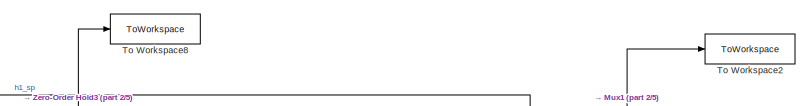
[diagram: root canvas - part 1/5, top center region]
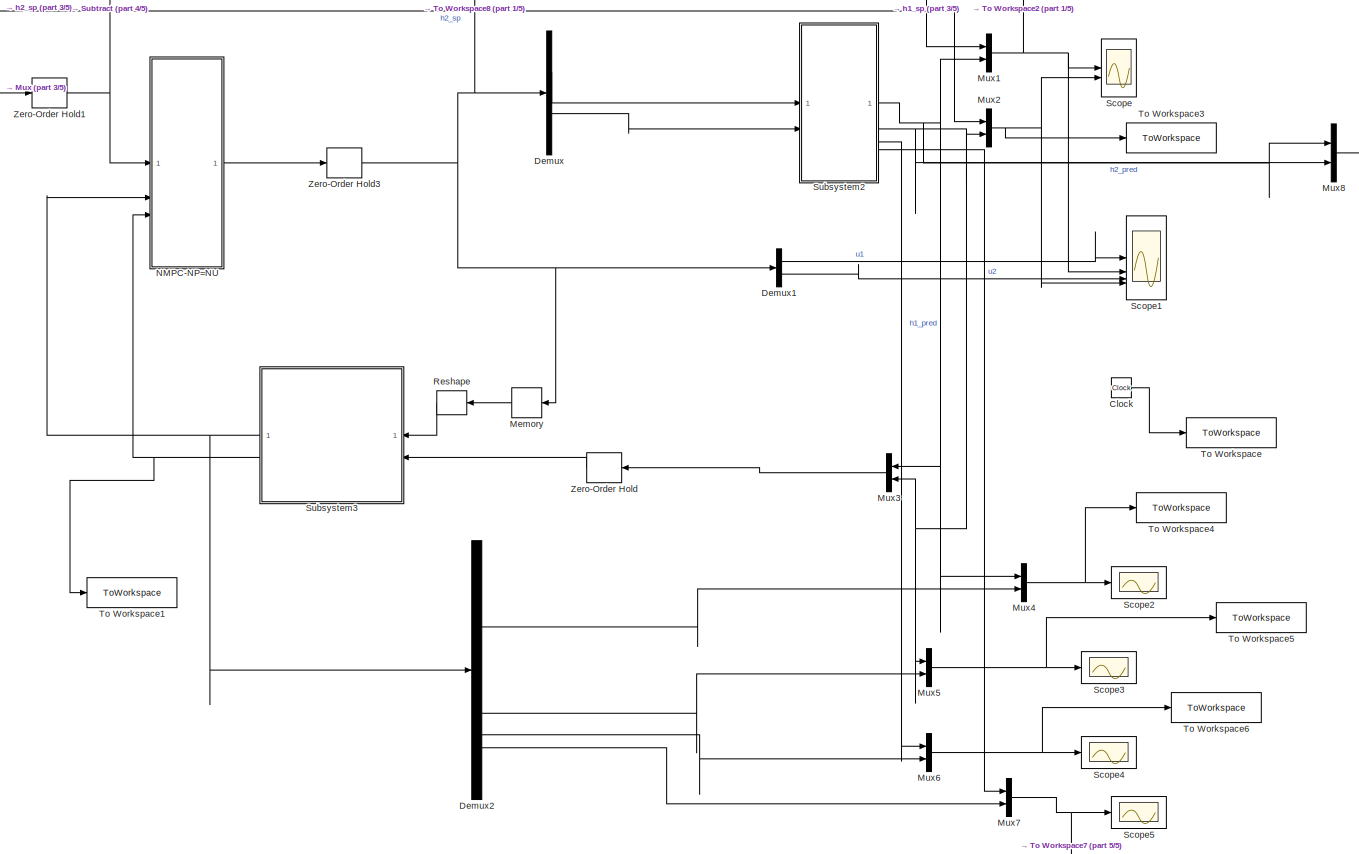
[diagram: root canvas - part 2/5, center side, full height]
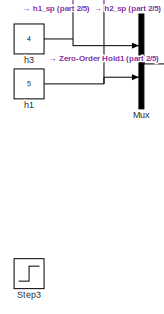
[diagram: root canvas - part 3/5, top left region]
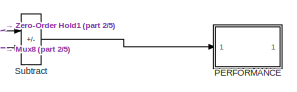
[diagram: root canvas - part 4/5, top right region]
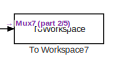
[diagram: root canvas - part 5/5, bottom right region]
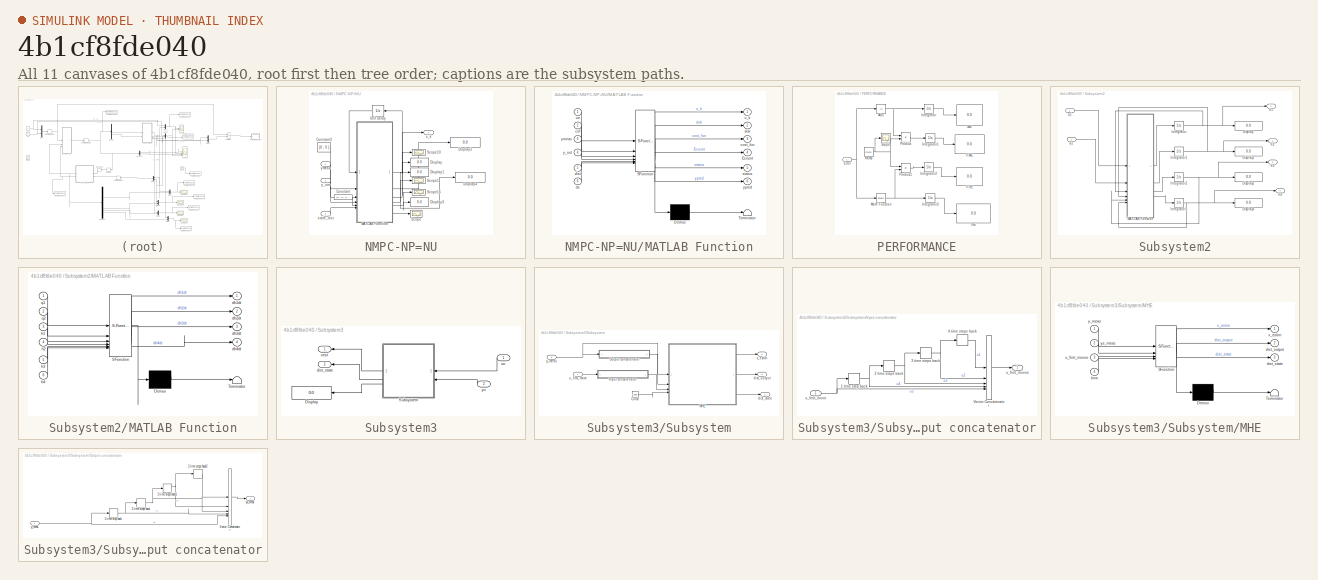
[diagram: thumbnail index - all 11 canvases of the model, root first then tree order]
MODEL slx_4b1cf8fde040
KIND model
CONFIG AbsTol = auto
CONFIG EnableMultiTasking = off
CONFIG FixedStep = auto
CONFIG MaxStep = auto
CONFIG MinStep = auto
CONFIG RelTol = 1e-3
CONFIG SampleTimeConstraint = Unconstrained
CONFIG SolverName = VariableStepAuto
CONFIG StartTime = 0.0
CONFIG StopTime = 1200
BLOCK [Clock] Clock
BLOCK [Demux] Demux
  Outputs = 2
BLOCK [Demux] Demux1
  Outputs = 2
BLOCK [Demux] Demux2
BLOCK [Memory] Memory
  InitialCondition = [55;75]
BLOCK [Mux] Mux
  DisplayOption = bar
  Inputs = 2
BLOCK [Mux] Mux1
  DisplayOption = bar
  Inputs = 2
BLOCK [Mux] Mux2
  DisplayOption = bar
  Inputs = 2
BLOCK [Mux] Mux3
  DisplayOption = bar
  Inputs = 2
BLOCK [Mux] Mux4
  DisplayOption = bar
  Inputs = 2
BLOCK [Mux] Mux5
  DisplayOption = bar
  Inputs = 2
BLOCK [Mux] Mux6
  DisplayOption = bar
  Inputs = 2
BLOCK [Mux] Mux7
  DisplayOption = bar
  Inputs = 2
BLOCK [Mux] Mux8
  DisplayOption = bar
  Inputs = 2
BLOCK [SubSystem] NMPC-NP=NU
BLOCK [Constant] NMPC-NP=NU/Constant
  Value = [0 ; 0 ; 0 ; 0]
BLOCK [Constant] NMPC-NP=NU/Constant2
  Value = [0 ; 0 ]
BLOCK [Display] NMPC-NP=NU/Display
  Decimation = 1
BLOCK [Display] NMPC-NP=NU/Display1
  Decimation = 1
BLOCK [Display] NMPC-NP=NU/Display2
  Decimation = 1
BLOCK [Display] NMPC-NP=NU/Display3
  Decimation = 1
BLOCK [Display] NMPC-NP=NU/Display4
  Decimation = 1
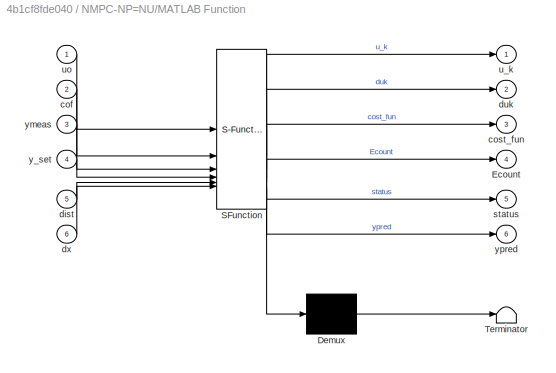
BLOCK [SubSystem] NMPC-NP=NU/MATLAB Function
  ErrorFcn = Stateflow.Translate.translate
  PermitHierarchicalResolution = ExplicitOnly
  SFBlockType = MATLAB Function
  TreatAsAtomicUnit = on
BLOCK [Demux] NMPC-NP=NU/MATLAB Function/ Demux 
  Outputs = 1
BLOCK [S-Function] NMPC-NP=NU/MATLAB Function/ SFunction 
  EnableBusSupport = on
  FunctionName = sf_sfun
  PortCounts = [6 7]
  SFcnIsStateOwnerBlock = off
  SFunctionDeploymentMode = off
  Tag = Stateflow S-Function 2
BLOCK [Terminator] NMPC-NP=NU/MATLAB Function/ Terminator 
BLOCK [Outport] NMPC-NP=NU/MATLAB Function/Ecount
  Port = 4
  VectorParamsAs1DForOutWhenUnconnected = off
BLOCK [Inport] NMPC-NP=NU/MATLAB Function/cof
  Port = 2
BLOCK [Outport] NMPC-NP=NU/MATLAB Function/cost_fun
  Port = 3
  VectorParamsAs1DForOutWhenUnconnected = off
BLOCK [Inport] NMPC-NP=NU/MATLAB Function/dist
  Port = 5
BLOCK [Outport] NMPC-NP=NU/MATLAB Function/duk
  Port = 2
BLOCK [Inport] NMPC-NP=NU/MATLAB Function/dx
  Port = 6
BLOCK [Outport] NMPC-NP=NU/MATLAB Function/status
  Port = 5
  VectorParamsAs1DForOutWhenUnconnected = off
BLOCK [Outport] NMPC-NP=NU/MATLAB Function/u_k
  VectorParamsAs1DForOutWhenUnconnected = off
BLOCK [Inport] NMPC-NP=NU/MATLAB Function/uo
BLOCK [Inport] NMPC-NP=NU/MATLAB Function/y_set
  Port = 4
BLOCK [Inport] NMPC-NP=NU/MATLAB Function/ymeas
  Port = 3
BLOCK [Outport] NMPC-NP=NU/MATLAB Function/ypred
  Port = 6
  VectorParamsAs1DForOutWhenUnconnected = off
BLOCK [Scope] NMPC-NP=NU/Scope
  Floating = off
  NumInputPorts = 1
  ScopeSpecificationString = Simulink.scopes.TimeScopeBlockCfg('CurrentConfiguration', extmgr.ConfigurationSet(extmgr.Configuration('Core','General UI',true),extmgr.Configuration('Core','Source UI',true),extmgr.Configuration('Sources','WiredSimulink',true,'DataLoggingVariableName','ScopeData8'),extmgr.Configuration('Visuals','Time Domain',true),extmgr.Configuration('Tools','Plot Navigation',true),extmgr.Configuration('Tools',...<+40ch>
BLOCK [Scope] NMPC-NP=NU/Scope1
  Floating = off
  NumInputPorts = 1
  ScopeSpecificationString = Simulink.scopes.TimeScopeBlockCfg('CurrentConfiguration', extmgr.ConfigurationSet(extmgr.Configuration('Core','General UI',true,'FigureColor',[0.156862745098039 0.156862745098039 0.156862745098039]),extmgr.Configuration('Core','Source UI',true),extmgr.Configuration('Sources','WiredSimulink',true,'DataLogging',true,'DataLoggingVariableName','ScopeData6','DataLoggingSaveFormat','StructureWithTime','...<+2809ch>
BLOCK [Scope] NMPC-NP=NU/Scope10
  Floating = off
  NumInputPorts = 1
  ScopeSpecificationString = Simulink.scopes.TimeScopeBlockCfg('CurrentConfiguration', extmgr.ConfigurationSet(extmgr.Configuration('Core','General UI',true,'FigureColor',[0.156862745098039 0.156862745098039 0.156862745098039]),extmgr.Configuration('Core','Source UI',true),extmgr.Configuration('Sources','WiredSimulink',true,'DataLogging',true,'DataLoggingVariableName','ScopeData1','DataLoggingSaveFormat','StructureWithTime','...<+2830ch>
BLOCK [Scope] NMPC-NP=NU/Scope16
  Floating = off
  NumInputPorts = 1
  ScopeSpecificationString = Simulink.scopes.TimeScopeBlockCfg('CurrentConfiguration', extmgr.ConfigurationSet(extmgr.Configuration('Core','General UI',true,'FigureColor',[0.156862745098039 0.156862745098039 0.156862745098039]),extmgr.Configuration('Core','Source UI',true),extmgr.Configuration('Sources','WiredSimulink',true,'DataLogging',true,'DataLoggingVariableName','ScopeData2','DataLoggingSaveFormat','StructureWithTime','...<+2785ch>
BLOCK [UnitDelay] NMPC-NP=NU/Unit Delay
  HasFrameUpgradeWarning = on
  InitialCondition = [55;75]
  SampleTime = Ts
BLOCK [Inport] NMPC-NP=NU/state_dist
  Port = 3
BLOCK [Outport] NMPC-NP=NU/u_k
  VectorParamsAs1DForOutWhenUnconnected = off
BLOCK [Inport] NMPC-NP=NU/y_set
BLOCK [Inport] NMPC-NP=NU/ymeas
  Port = 2
BLOCK [SubSystem] PERFORMANCE
BLOCK [Abs] PERFORMANCE/Abs
  SaturateOnIntegerOverflow = off
BLOCK [Inport] PERFORMANCE/Error
BLOCK [Display] PERFORMANCE/IAE
  Decimation = 1
BLOCK [Display] PERFORMANCE/ISE
  Decimation = 1
BLOCK [Display] PERFORMANCE/ITAE
  Decimation = 1
BLOCK [Display] PERFORMANCE/ITSE
  Decimation = 1
BLOCK [Integrator] PERFORMANCE/Integrator
BLOCK [Integrator] PERFORMANCE/Integrator1
BLOCK [Integrator] PERFORMANCE/Integrator2
BLOCK [Integrator] PERFORMANCE/Integrator3
BLOCK [Math] PERFORMANCE/Math Function
  Operator = square
  SignedPower = on
BLOCK [Product] PERFORMANCE/Product
  RndMeth = Zero
BLOCK [Product] PERFORMANCE/Product1
  RndMeth = Zero
BLOCK [Reference] PERFORMANCE/Ramp  REF=simulink/Sources/Ramp
  SourceBlock = simulink/Sources/Ramp
  SourceType = Ramp
BLOCK [Scope] PERFORMANCE/Scope
  Floating = off
  NumInputPorts = 1
  ScopeSpecificationString = Simulink.scopes.TimeScopeBlockCfg('CurrentConfiguration', extmgr.ConfigurationSet(extmgr.Configuration('Core','General UI',true),extmgr.Configuration('Core','Source UI',true),extmgr.Configuration('Sources','WiredSimulink',true,'DataLoggingLimitDataPoints',true,'DataLoggingSaveFormat','Array','DataLoggingDecimation','1','DataLoggingDecimateData',true),extmgr.Configuration('Visuals','Time Domain',tr...<+878ch>
BLOCK [Reshape] Reshape
  OutputDimensionality = Row vector (2-D)
BLOCK [Scope] Scope
  Floating = off
  NumInputPorts = 2
  ScopeSpecificationString = Simulink.scopes.TimeScopeBlockCfg('CurrentConfiguration', extmgr.ConfigurationSet(extmgr.Configuration('Core','General UI',true),extmgr.Configuration('Core','Source UI',true),extmgr.Configuration('Sources','WiredSimulink',true,'DataLoggingVariableName','ScopeData1'),extmgr.Configuration('Visuals','Time Domain',true),extmgr.Configuration('Tools','Plot Navigation',true),extmgr.Configuration('Tools',...<+40ch>
BLOCK [Scope] Scope1
  Floating = off
  NumInputPorts = 4
  ScopeSpecificationString = Simulink.scopes.TimeScopeBlockCfg('CurrentConfiguration', extmgr.ConfigurationSet(extmgr.Configuration('Core','General UI',true),extmgr.Configuration('Core','Source UI',true),extmgr.Configuration('Sources','WiredSimulink',true,'DataLoggingVariableName','ScopeData2'),extmgr.Configuration('Visuals','Time Domain',true,'SerializedDisplays',{struct('MinYLimReal','54.99887','MaxYLimReal','55.01021','YLa...<+3434ch>
BLOCK [Scope] Scope2
  Floating = off
  NumInputPorts = 1
  ScopeSpecificationString = Simulink.scopes.TimeScopeBlockCfg('CurrentConfiguration', extmgr.ConfigurationSet(extmgr.Configuration('Core','General UI',true),extmgr.Configuration('Core','Source UI',true),extmgr.Configuration('Sources','WiredSimulink',true,'DataLoggingVariableName','ScopeData1'),extmgr.Configuration('Visuals','Time Domain',true),extmgr.Configuration('Tools','Plot Navigation',true),extmgr.Configuration('Tools',...<+40ch>
BLOCK [Scope] Scope3
  Floating = off
  NumInputPorts = 1
  ScopeSpecificationString = Simulink.scopes.TimeScopeBlockCfg('CurrentConfiguration', extmgr.ConfigurationSet(extmgr.Configuration('Core','General UI',true),extmgr.Configuration('Core','Source UI',true),extmgr.Configuration('Sources','WiredSimulink',true,'DataLoggingVariableName','ScopeData2'),extmgr.Configuration('Visuals','Time Domain',true),extmgr.Configuration('Tools','Plot Navigation',true),extmgr.Configuration('Tools',...<+40ch>
BLOCK [Scope] Scope4
  Floating = off
  NumInputPorts = 1
  ScopeSpecificationString = Simulink.scopes.TimeScopeBlockCfg('CurrentConfiguration', extmgr.ConfigurationSet(extmgr.Configuration('Core','General UI',true),extmgr.Configuration('Core','Source UI',true),extmgr.Configuration('Sources','WiredSimulink',true,'DataLoggingVariableName','ScopeData3'),extmgr.Configuration('Visuals','Time Domain',true),extmgr.Configuration('Tools','Plot Navigation',true),extmgr.Configuration('Tools',...<+40ch>
BLOCK [Scope] Scope5
  Floating = off
  NumInputPorts = 1
  ScopeSpecificationString = Simulink.scopes.TimeScopeBlockCfg('CurrentConfiguration', extmgr.ConfigurationSet(extmgr.Configuration('Core','General UI',true),extmgr.Configuration('Core','Source UI',true),extmgr.Configuration('Sources','WiredSimulink',true,'DataLoggingVariableName','ScopeData4'),extmgr.Configuration('Visuals','Time Domain',true),extmgr.Configuration('Tools','Plot Navigation',true),extmgr.Configuration('Tools',...<+40ch>
BLOCK [Step] Step3
  After = 6.5
  Before = 5
  SampleTime = 0
  Time = 500
BLOCK [SubSystem] Subsystem2
BLOCK [Display] Subsystem2/Display
  Decimation = 1
BLOCK [Display] Subsystem2/Display1
  Decimation = 1
BLOCK [Display] Subsystem2/Display2
  Decimation = 1
BLOCK [Display] Subsystem2/Display3
  Decimation = 1
BLOCK [Integrator] Subsystem2/Integrator
BLOCK [Integrator] Subsystem2/Integrator1
BLOCK [Integrator] Subsystem2/Integrator2
BLOCK [Integrator] Subsystem2/Integrator3
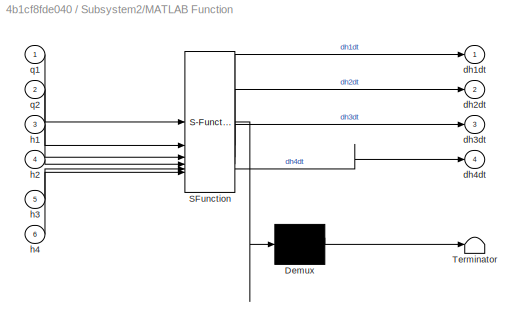
BLOCK [SubSystem] Subsystem2/MATLAB Function
  ErrorFcn = Stateflow.Translate.translate
  PermitHierarchicalResolution = ExplicitOnly
  SFBlockType = MATLAB Function
  TreatAsAtomicUnit = on
BLOCK [Demux] Subsystem2/MATLAB Function/ Demux 
  Outputs = 1
BLOCK [S-Function] Subsystem2/MATLAB Function/ SFunction 
  EnableBusSupport = on
  FunctionName = sf_sfun
  PortCounts = [6 5]
  SFcnIsStateOwnerBlock = off
  SFunctionDeploymentMode = off
  Tag = Stateflow S-Function 3
BLOCK [Terminator] Subsystem2/MATLAB Function/ Terminator 
BLOCK [Outport] Subsystem2/MATLAB Function/dh1dt
BLOCK [Outport] Subsystem2/MATLAB Function/dh2dt
  Port = 2
BLOCK [Outport] Subsystem2/MATLAB Function/dh3dt
  Port = 3
BLOCK [Outport] Subsystem2/MATLAB Function/dh4dt
  Port = 4
BLOCK [Inport] Subsystem2/MATLAB Function/h1
  Port = 3
BLOCK [Inport] Subsystem2/MATLAB Function/h2
  Port = 4
BLOCK [Inport] Subsystem2/MATLAB Function/h3
  Port = 5
BLOCK [Inport] Subsystem2/MATLAB Function/h4
  Port = 6
BLOCK [Inport] Subsystem2/MATLAB Function/q1
BLOCK [Inport] Subsystem2/MATLAB Function/q2
  Port = 2
BLOCK [Outport] Subsystem2/h1
BLOCK [Outport] Subsystem2/h2
  Port = 2
BLOCK [Outport] Subsystem2/h3
  Port = 3
BLOCK [Outport] Subsystem2/h4
  Port = 4
BLOCK [Inport] Subsystem2/q1
BLOCK [Inport] Subsystem2/q2
  Port = 2
BLOCK [SubSystem] Subsystem3
BLOCK [Display] Subsystem3/Display
  Decimation = 1
BLOCK [SubSystem] Subsystem3/Subsystem
BLOCK [Clock] Subsystem3/Subsystem/Clock
  Decimation = 20
BLOCK [SubSystem] Subsystem3/Subsystem/Input concatenator
BLOCK [TransportDelay] Subsystem3/Subsystem/Input concatenator/1 time step back
  DelayTime = 3
  InitialOutput = [55,75]
BLOCK [TransportDelay] Subsystem3/Subsystem/Input concatenator/2 time steps back
  DelayTime = 3
  InitialOutput = [55,75]
BLOCK [TransportDelay] Subsystem3/Subsystem/Input concatenator/3 time steps back
  DelayTime = 3
  InitialOutput = [55,75]
BLOCK [TransportDelay] Subsystem3/Subsystem/Input concatenator/4 time steps back
  DelayTime = 3
  InitialOutput = [55,75]
BLOCK [Concatenate] Subsystem3/Subsystem/Input concatenator/Vector Concatenator
  Mode = Multidimensional array
  NumInputs = 5
BLOCK [Inport] Subsystem3/Subsystem/Input concatenator/u_first_move
BLOCK [Outport] Subsystem3/Subsystem/Input concatenator/u_first_moves
  PortDimensions = [5,2]
  VectorParamsAs1DForOutWhenUnconnected = off
BLOCK [SubSystem] Subsystem3/Subsystem/MHE
  ErrorFcn = Stateflow.Translate.translate
  PermitHierarchicalResolution = ExplicitOnly
  SFBlockType = MATLAB Function
  TreatAsAtomicUnit = on
BLOCK [Demux] Subsystem3/Subsystem/MHE/ Demux 
  Outputs = 1
BLOCK [S-Function] Subsystem3/Subsystem/MHE/ SFunction 
  EnableBusSupport = on
  FunctionName = sf_sfun
  PortCounts = [4 4]
  SFcnIsStateOwnerBlock = off
  SFunctionDeploymentMode = off
  Tag = Stateflow S-Function 5
BLOCK [Terminator] Subsystem3/Subsystem/MHE/ Terminator 
BLOCK [Outport] Subsystem3/Subsystem/MHE/dist_output
  Port = 2
BLOCK [Outport] Subsystem3/Subsystem/MHE/dist_state
  Port = 3
BLOCK [Inport] Subsystem3/Subsystem/MHE/time
  Port = 4
BLOCK [Inport] Subsystem3/Subsystem/MHE/u_first_moves
  Port = 3
BLOCK [Outport] Subsystem3/Subsystem/MHE/x_estim
BLOCK [Inport] Subsystem3/Subsystem/MHE/y_meas
BLOCK [Inport] Subsystem3/Subsystem/MHE/ys_meas
  Port = 2
BLOCK [SubSystem] Subsystem3/Subsystem/Output concatenator
BLOCK [TransportDelay] Subsystem3/Subsystem/Output concatenator/1 time step back
  DelayTime = 3
  InitialOutput = [4,5]
BLOCK [TransportDelay] Subsystem3/Subsystem/Output concatenator/2 time steps back
  DelayTime = 3
  InitialOutput = [4,5]
BLOCK [TransportDelay] Subsystem3/Subsystem/Output concatenator/2 time steps back1
  DelayTime = 3
  InitialOutput = [4,5]
BLOCK [TransportDelay] Subsystem3/Subsystem/Output concatenator/2 time steps back2
  DelayTime = 3
  InitialOutput = [4,5]
BLOCK [Concatenate] Subsystem3/Subsystem/Output concatenator/Vector Concatenator
  Mode = Multidimensional array
  NumInputs = 5
BLOCK [Inport] Subsystem3/Subsystem/Output concatenator/y_meas
BLOCK [Outport] Subsystem3/Subsystem/Output concatenator/ys_meas
  PortDimensions = [5,2]
  VectorParamsAs1DForOutWhenUnconnected = off
BLOCK [Outport] Subsystem3/Subsystem/dist_output
  Port = 3
BLOCK [Outport] Subsystem3/Subsystem/dist_state
  Port = 2
BLOCK [Inport] Subsystem3/Subsystem/u_first_move
  PortDimensions = [1,2]
BLOCK [Outport] Subsystem3/Subsystem/x_estim
BLOCK [Inport] Subsystem3/Subsystem/y_meas
  Port = 2
  PortDimensions = [1,2]
BLOCK [Outport] Subsystem3/dist_state
  Port = 2
BLOCK [Inport] Subsystem3/uo
BLOCK [Outport] Subsystem3/xest
BLOCK [Inport] Subsystem3/yo
  Port = 2
BLOCK [Sum] Subtract
  IconShape = rectangular
  Inputs = +-
BLOCK [ToWorkspace] To Workspace
  FixptAsFi = on
  MaxDataPoints = inf
  SampleTime = Ts
  SaveFormat = Timeseries
  VariableName = t_save
BLOCK [ToWorkspace] To Workspace1
  FixptAsFi = on
  MaxDataPoints = inf
  SampleTime = Ts
  SaveFormat = Timeseries
  VariableName = state
BLOCK [ToWorkspace] To Workspace2
  FixptAsFi = on
  MaxDataPoints = inf
  SampleTime = Ts
  SaveFormat = Timeseries
  VariableName = H1
BLOCK [ToWorkspace] To Workspace3
  FixptAsFi = on
  MaxDataPoints = inf
  SampleTime = Ts
  SaveFormat = Timeseries
  VariableName = H2
BLOCK [ToWorkspace] To Workspace4
  FixptAsFi = on
  MaxDataPoints = inf
  SampleTime = Ts
  SaveFormat = Timeseries
  VariableName = h1
BLOCK [ToWorkspace] To Workspace5
  FixptAsFi = on
  MaxDataPoints = inf
  SampleTime = Ts
  SaveFormat = Timeseries
  VariableName = h2
BLOCK [ToWorkspace] To Workspace6
  FixptAsFi = on
  MaxDataPoints = inf
  SampleTime = Ts
  SaveFormat = Timeseries
  VariableName = h3
BLOCK [ToWorkspace] To Workspace7
  FixptAsFi = on
  MaxDataPoints = inf
  SampleTime = Ts
  SaveFormat = Timeseries
  VariableName = h4
BLOCK [ToWorkspace] To Workspace8
  FixptAsFi = on
  MaxDataPoints = inf
  SampleTime = Ts
  SaveFormat = Timeseries
  VariableName = V
BLOCK [ZeroOrderHold] Zero-Order Hold
  SampleTime = Ts
BLOCK [ZeroOrderHold] Zero-Order Hold1
  SampleTime = Ts
BLOCK [ZeroOrderHold] Zero-Order Hold3
  SampleTime = Ts
BLOCK [Constant] h1
  Value = 5
BLOCK [Constant] h3
  Value = 4
LINE Clock:1 -> To Workspace:1
LINE Demux1:1 -> Scope1:1
LINE Demux1:2 -> Scope1:3
LINE Demux2:1 -> Mux4:2
LINE Demux2:2 -> Mux5:2
LINE Demux2:3 -> Mux6:2
LINE Demux2:4 -> Mux7:2
LINE Demux:1 -> Subsystem2:1
LINE Demux:2 -> Subsystem2:2
LINE Memory:1 -> Reshape:1
NET Mux1:1 -> Scope1:2, Scope:1, To Workspace2:1
NET Mux2:1 -> Scope1:4, Scope:2, To Workspace3:1
LINE Mux3:1 -> Zero-Order Hold:1
NET Mux4:1 -> Scope2:1, To Workspace4:1
NET Mux5:1 -> Scope3:1, To Workspace5:1
NET Mux6:1 -> Scope4:1, To Workspace6:1
NET Mux7:1 -> Scope5:1, To Workspace7:1
LINE Mux8:1 -> Subtract:2
LINE Mux:1 -> Zero-Order Hold1:1
LINE NMPC-NP=NU/Constant2:1 -> NMPC-NP=NU/MATLAB Function:2
LINE NMPC-NP=NU/Constant:1 -> NMPC-NP=NU/MATLAB Function:5
NET NMPC-NP=NU/MATLAB Function:1 -> NMPC-NP=NU/Unit Delay:1, NMPC-NP=NU/u_k:1
LINE NMPC-NP=NU/MATLAB Function:2 -> NMPC-NP=NU/Display2:1
NET NMPC-NP=NU/MATLAB Function:3 -> NMPC-NP=NU/Display:1, NMPC-NP=NU/Scope10:1
NET NMPC-NP=NU/MATLAB Function:4 -> NMPC-NP=NU/Display1:1, NMPC-NP=NU/Display4:1, NMPC-NP=NU/Scope1:1
NET NMPC-NP=NU/MATLAB Function:5 -> NMPC-NP=NU/Display3:1, NMPC-NP=NU/Scope16:1
LINE NMPC-NP=NU/MATLAB Function:6 -> NMPC-NP=NU/Scope:1
LINE NMPC-NP=NU/Unit Delay:1 -> NMPC-NP=NU/MATLAB Function:1
LINE NMPC-NP=NU/state_dist:1 -> NMPC-NP=NU/MATLAB Function:6
LINE NMPC-NP=NU/y_set:1 -> NMPC-NP=NU/MATLAB Function:4
LINE NMPC-NP=NU/ymeas:1 -> NMPC-NP=NU/MATLAB Function:3
LINE NMPC-NP=NU:1 -> Zero-Order Hold3:1
NET PERFORMANCE/Abs:1 -> PERFORMANCE/Integrator:1, PERFORMANCE/Product:1
NET PERFORMANCE/Error:1 -> PERFORMANCE/Abs:1, PERFORMANCE/Math Function:1
LINE PERFORMANCE/Integrator1:1 -> PERFORMANCE/ITAE:1
LINE PERFORMANCE/Integrator2:1 -> PERFORMANCE/ITSE:1
LINE PERFORMANCE/Integrator3:1 -> PERFORMANCE/ISE:1
LINE PERFORMANCE/Integrator:1 -> PERFORMANCE/IAE:1
NET PERFORMANCE/Math Function:1 -> PERFORMANCE/Integrator3:1, PERFORMANCE/Product1:2
LINE PERFORMANCE/Product1:1 -> PERFORMANCE/Integrator2:1
LINE PERFORMANCE/Product:1 -> PERFORMANCE/Integrator1:1
NET PERFORMANCE/Ramp:1 -> PERFORMANCE/Product1:1, PERFORMANCE/Product:2, PERFORMANCE/Scope:1
LINE Reshape:1 -> Subsystem3:1
NET Subsystem2/Integrator1:1 -> Subsystem2/Display1:1, Subsystem2/MATLAB Function:4, Subsystem2/h2:1
NET Subsystem2/Integrator2:1 -> Subsystem2/Display2:1, Subsystem2/MATLAB Function:5, Subsystem2/h3:1
NET Subsystem2/Integrator3:1 -> Subsystem2/Display3:1, Subsystem2/MATLAB Function:6, Subsystem2/h4:1
NET Subsystem2/Integrator:1 -> Subsystem2/Display:1, Subsystem2/MATLAB Function:3, Subsystem2/h1:1
LINE Subsystem2/MATLAB Function:1 -> Subsystem2/Integrator:1
LINE Subsystem2/MATLAB Function:2 -> Subsystem2/Integrator1:1
LINE Subsystem2/MATLAB Function:3 -> Subsystem2/Integrator2:1
LINE Subsystem2/MATLAB Function:4 -> Subsystem2/Integrator3:1
LINE Subsystem2/q1:1 -> Subsystem2/MATLAB Function:1
LINE Subsystem2/q2:1 -> Subsystem2/MATLAB Function:2
NET Subsystem2:1 -> Mux1:2, Mux3:1, Mux4:1, Mux8:1
NET Subsystem2:2 -> Mux2:2, Mux3:2, Mux5:1, Mux8:2
LINE Subsystem2:3 -> Mux6:1
LINE Subsystem2:4 -> Mux7:1
LINE Subsystem3/Subsystem/Clock:1 -> Subsystem3/Subsystem/MHE:4
NET Subsystem3/Subsystem/Input concatenator/1 time step back:1 -> Subsystem3/Subsystem/Input concatenator/2 time steps back:1, Subsystem3/Subsystem/Input concatenator/Vector Concatenator:4
NET Subsystem3/Subsystem/Input concatenator/2 time steps back:1 -> Subsystem3/Subsystem/Input concatenator/3 time steps back:1, Subsystem3/Subsystem/Input concatenator/Vector Concatenator:3
NET Subsystem3/Subsystem/Input concatenator/3 time steps back:1 -> Subsystem3/Subsystem/Input concatenator/4 time steps back:1, Subsystem3/Subsystem/Input concatenator/Vector Concatenator:2
LINE Subsystem3/Subsystem/Input concatenator/4 time steps back:1 -> Subsystem3/Subsystem/Input concatenator/Vector Concatenator:1
LINE Subsystem3/Subsystem/Input concatenator/Vector Concatenator:1 -> Subsystem3/Subsystem/Input concatenator/u_first_moves:1
NET Subsystem3/Subsystem/Input concatenator/u_first_move:1 -> Subsystem3/Subsystem/Input concatenator/1 time step back:1, Subsystem3/Subsystem/Input concatenator/Vector Concatenator:5
LINE Subsystem3/Subsystem/Input concatenator:1 -> Subsystem3/Subsystem/MHE:3
LINE Subsystem3/Subsystem/MHE:1 -> Subsystem3/Subsystem/x_estim:1
LINE Subsystem3/Subsystem/MHE:2 -> Subsystem3/Subsystem/dist_output:1
LINE Subsystem3/Subsystem/MHE:3 -> Subsystem3/Subsystem/dist_state:1
NET Subsystem3/Subsystem/Output concatenator/1 time step back:1 -> Subsystem3/Subsystem/Output concatenator/2 time steps back:1, Subsystem3/Subsystem/Output concatenator/Vector Concatenator:4
NET Subsystem3/Subsystem/Output concatenator/2 time steps back1:1 -> Subsystem3/Subsystem/Output concatenator/2 time steps back2:1, Subsystem3/Subsystem/Output concatenator/Vector Concatenator:2
LINE Subsystem3/Subsystem/Output concatenator/2 time steps back2:1 -> Subsystem3/Subsystem/Output concatenator/Vector Concatenator:1
NET Subsystem3/Subsystem/Output concatenator/2 time steps back:1 -> Subsystem3/Subsystem/Output concatenator/2 time steps back1:1, Subsystem3/Subsystem/Output concatenator/Vector Concatenator:3
LINE Subsystem3/Subsystem/Output concatenator/Vector Concatenator:1 -> Subsystem3/Subsystem/Output concatenator/ys_meas:1
NET Subsystem3/Subsystem/Output concatenator/y_meas:1 -> Subsystem3/Subsystem/Output concatenator/1 time step back:1, Subsystem3/Subsystem/Output concatenator/Vector Concatenator:5
LINE Subsystem3/Subsystem/Output concatenator:1 -> Subsystem3/Subsystem/MHE:2
LINE Subsystem3/Subsystem/u_first_move:1 -> Subsystem3/Subsystem/Input concatenator:1
NET Subsystem3/Subsystem/y_meas:1 -> Subsystem3/Subsystem/MHE:1, Subsystem3/Subsystem/Output concatenator:1
LINE Subsystem3/Subsystem:1 -> Subsystem3/xest:1
LINE Subsystem3/Subsystem:2 -> Subsystem3/dist_state:1
LINE Subsystem3/Subsystem:3 -> Subsystem3/Display:1
LINE Subsystem3/uo:1 -> Subsystem3/Subsystem:1
LINE Subsystem3/yo:1 -> Subsystem3/Subsystem:2
NET Subsystem3:1 -> Demux2:1, NMPC-NP=NU:2
NET Subsystem3:2 -> NMPC-NP=NU:3, To Workspace1:1
LINE Subtract:1 -> PERFORMANCE:1
NET Zero-Order Hold1:1 -> NMPC-NP=NU:1, Subtract:1
NET Zero-Order Hold3:1 -> Demux1:1, Demux:1, Memory:1, To Workspace8:1
LINE Zero-Order Hold:1 -> Subsystem3:2
NET h1:1 -> Mux2:1, Mux:2
NET h3:1 -> Mux1:1, Mux:1
note: NET lines group one-source signal fan-out (src -> all destinations, sorted); 1:1 wires keep LINE
CHART NMPC-NP=NU/MATLAB Function states=1 transitions=1
  STATE_LABEL 'eML_blk_kernel()'
  STATE_LABEL "SCRIPT:\nfunction [u_k,duk,cost_fun,Ecount,status,ypred] = NMPC_FT(uo,cof,ymeas,y_set,dist,dx)\n\n%#codegen\ncoder.extrinsic('ucompute')\n\nr1=y_set(1)  ; \nr2=y_set(2)  ; \n\nxo=ymeas  ;\n\n\nd1 = dist(1,:);\nd2 = dist(2,:);\nd3 = dist(3,:);\nd4 = dist(4,:);\n\n%MPC TUNNING PARAMETERS\nNp=10;  % 3  %   10  60  40\n%Nu=1;   %  2   %  1\n\n\n%%%%%%%%%%%%%%%%%%%%%%%%%%%%%%%%%%%%%%%%%%%%%%%%%%%%%%%%%%%%%\n\n% WEIGHTS ON Y, ...<+1641ch>"
CHART Subsystem2/MATLAB Function states=1 transitions=1
  STATE_LABEL 'eML_blk_kernel()'
  STATE_LABEL 'SCRIPT:\nfunction [dh1dt,dh2dt,dh3dt,dh4dt] = fcn(q1,q2,h1,h2,h3,h4)\nvalues = {0.97,0.42,0.74,0.426,0.8542,0.7126,0.7722,0.5149,35,35,39,39,981,0.23,0.19};\n[a1,a3,a2,a4,alpha1,alpha3,alpha2,alpha4,A1,A3,A2,A4,g,gamma1,gamma2] = values{:};\n\n%F = k1 * v1;\n%F2 = k2 * v2;\n\n    dh1dt = -(a1*alpha1/A1) * sqrt(2 * g * h1) + (a3*alpha3/A1) * sqrt(2 * g * h3) + (gamma1 * q1) / A1;\n    dh2dt = -(a2*alpha2/A2...<+235ch>'
CHART Subsystem3/Subsystem/MHE states=1 transitions=1
  STATE_LABEL 'eML_blk_kernel()'
  STATE_LABEL "SCRIPT:\nfunction [x_estim,dist_output,dist_state] = MHE_4_tanks(y_meas,ys_meas,u_first_moves,time)\n\ncoder.extrinsic('MHE_compute','clear_var');\n\nN_MHE=5  ;\n% Ts=2 ;\n\n\nif time < 15\n    \n    x_estim =  [4;5;21;19]  ;\n   % x_estim = [17;17;17];\n    %x_estim = [5.898;1.8];\n    dist_output = [0;0];\n    dist_state = [0;0;0;0];\n    clear_var();\nelse\n    \n    [x_estim,dist_state,dist_output] = MHE_compute...<+117ch>"
CHART  states=0 transitions=0
CHART  states=0 transitions=0
CHART  states=0 transitions=0
